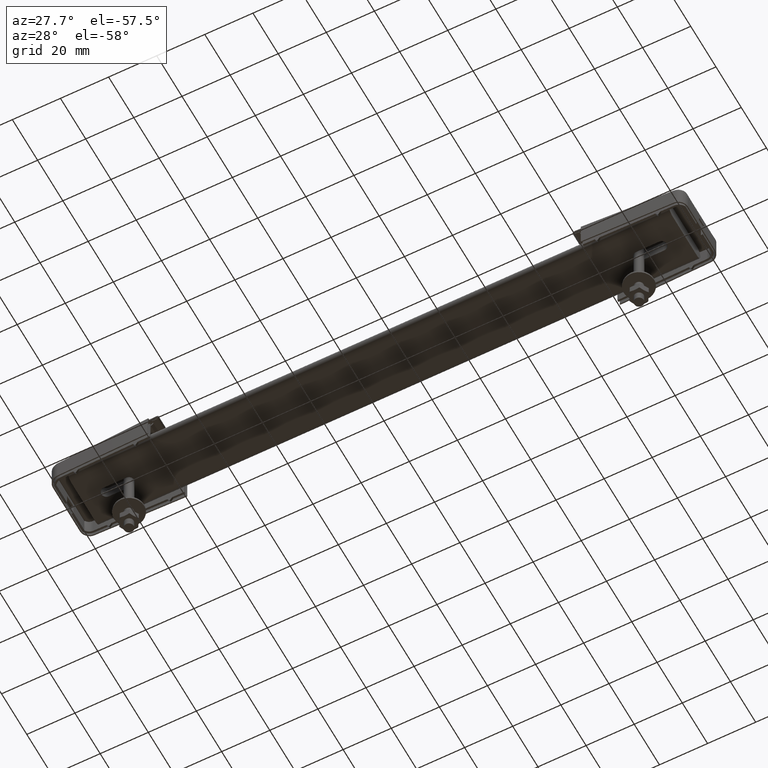
[diagram: clean part render]
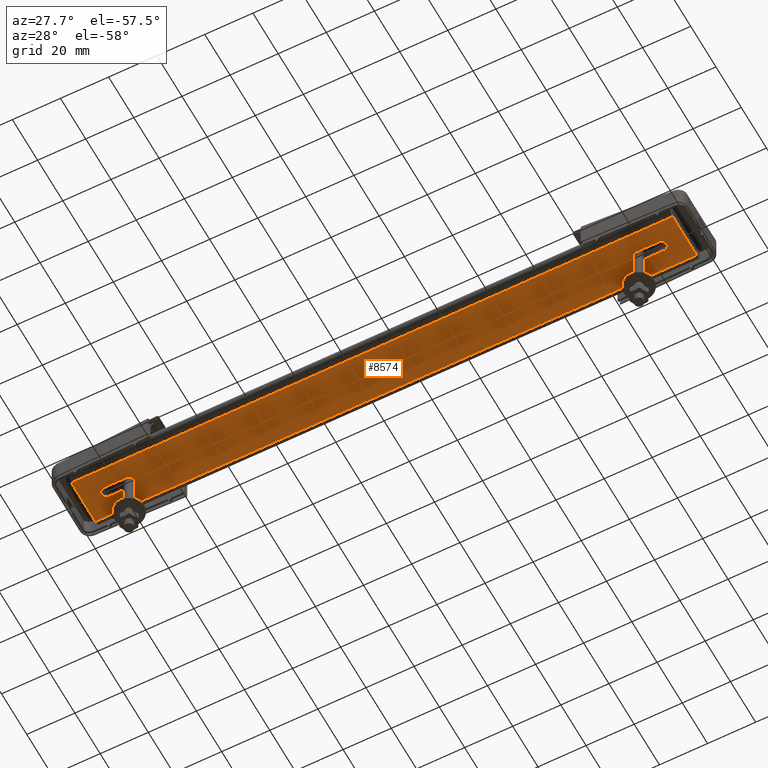
[diagram: same view with one face highlighted and labeled with its STEP entity id]
A machine part, auxiliary view. The second image highlights one B-rep face of the part: STEP entity #8574.
In plain terms, the highlighted face is a freeform B-spline surface patch.
Its self-contained STEP definition (entity closure, byte-faithful):
#7579=CARTESIAN_POINT('',(-115.400000000000010,2.100000000000045,0.0));
#7580=VERTEX_POINT('',#7579);
#7586=CARTESIAN_POINT('',(-106.0,2.099999999999900,0.0));
#7587=VERTEX_POINT('',#7586);
#7588=CARTESIAN_POINT('',(-115.400000000000010,2.100000000000045,0.0));
#7589=CARTESIAN_POINT('',(-106.0,2.099999999999900,0.0));
#7590=QUASI_UNIFORM_CURVE('',1,(#7588,#7589),.UNSPECIFIED.,.F.,.U.);
#7591=EDGE_CURVE('',#7580,#7587,#7590,.T.);
#7645=CARTESIAN_POINT('',(-103.900000000010910,-0.000006727861739,0.0));
#7646=VERTEX_POINT('',#7645);
#7647=CARTESIAN_POINT('',(-106.0,2.099999999999900,0.0));
#7648=CARTESIAN_POINT('',(-105.793858207144200,2.100022441297327,0.0));
#7649=CARTESIAN_POINT('',(-105.312683613142990,2.028830050815516,0.0));
#7650=CARTESIAN_POINT('',(-104.694954565642010,1.698592306469166,0.0));
#7651=CARTESIAN_POINT('',(-104.216778295933810,1.170813567834429,0.0));
#7652=CARTESIAN_POINT('',(-103.955965837774000,0.601321777797262,0.0));
#7653=CARTESIAN_POINT('',(-103.899954528681110,0.188974628914923,0.0));
#7654=CARTESIAN_POINT('',(-103.900000000010910,-0.000006727861739,0.0));
#7655=B_SPLINE_CURVE_WITH_KNOTS('',3,(#7647,#7648,#7649,#7650,#7651,#7652,#7653,#7654),.UNSPECIFIED.,.F.,.U.,(4,1,1,1,1,4),(0.000000660187966,0.618500699534173,1.443256068757343,2.061679562613096,2.731802184463999,3.298758855307647),.UNSPECIFIED.);
#7656=EDGE_CURVE('',#7587,#7646,#7655,.T.);
#7658=CARTESIAN_POINT('',(-106.0,-2.099999999999845,0.0));
#7659=VERTEX_POINT('',#7658);
#7660=CARTESIAN_POINT('',(-103.900000000010910,-0.000006727861739,0.0));
#7661=CARTESIAN_POINT('',(-103.899975792591900,-0.171803472261163,0.0));
#7662=CARTESIAN_POINT('',(-103.950806914912600,-0.584159895463627,0.0));
#7663=CARTESIAN_POINT('',(-104.233172880867500,-1.221861500744236,0.0));
#7664=CARTESIAN_POINT('',(-104.765791322855090,-1.754396748441160,0.0));
#7665=CARTESIAN_POINT('',(-105.398682666940300,-2.044004752651482,0.0));
#7666=CARTESIAN_POINT('',(-105.811021553053390,-2.100046344688557,0.0));
#7667=CARTESIAN_POINT('',(-106.0,-2.099999999999845,0.0));
#7668=B_SPLINE_CURVE_WITH_KNOTS('',3,(#7660,#7661,#7662,#7663,#7664,#7665,#7666,#7667),.UNSPECIFIED.,.F.,.U.,(4,1,1,1,1,4),(0.000000669351694,0.515409226561865,1.237081952212646,2.061674805202644,2.731795907637514,3.298751271250123),.UNSPECIFIED.);
#7669=EDGE_CURVE('',#7646,#7659,#7668,.T.);
#7692=CARTESIAN_POINT('',(-115.400000000000010,-2.099999999999960,0.0));
#7693=VERTEX_POINT('',#7692);
#7694=CARTESIAN_POINT('',(-106.0,-2.099999999999845,0.0));
#7695=CARTESIAN_POINT('',(-115.400000000000010,-2.099999999999960,0.0));
#7696=QUASI_UNIFORM_CURVE('',1,(#7694,#7695),.UNSPECIFIED.,.F.,.U.);
#7697=EDGE_CURVE('',#7659,#7693,#7696,.T.);
#7749=CARTESIAN_POINT('',(-117.499999999989300,0.000006727861809,0.0));
#7750=VERTEX_POINT('',#7749);
#7751=CARTESIAN_POINT('',(-115.400000000000010,-2.099999999999960,0.0));
#7752=CARTESIAN_POINT('',(-115.726519804344600,-2.100552176192001,0.0));
#7753=CARTESIAN_POINT('',(-116.292946744644890,-1.965087574677963,0.0));
#7754=CARTESIAN_POINT('',(-116.923053928036100,-1.497566655752322,0.0));
#7755=CARTESIAN_POINT('',(-117.373200554705900,-0.858590202306773,0.0));
#7756=CARTESIAN_POINT('',(-117.500570902402000,-0.326545134749809,0.0));
#7757=CARTESIAN_POINT('',(-117.499999999989300,0.000006727861809,0.0));
#7758=B_SPLINE_CURVE_WITH_KNOTS('',3,(#7751,#7752,#7753,#7754,#7755,#7756,#7757),.UNSPECIFIED.,.F.,.U.,(4,1,1,1,4),(0.000000660187373,0.979322859041585,1.700823189839377,2.319432908616478,3.298758855307866),.UNSPECIFIED.);
#7759=EDGE_CURVE('',#7693,#7750,#7758,.T.);
#7761=CARTESIAN_POINT('',(-117.499999999989300,0.000006727861809,0.0));
#7762=CARTESIAN_POINT('',(-117.500053793766800,0.206159218955968,0.0));
#7763=CARTESIAN_POINT('',(-117.428757976611290,0.687283170919369,0.0));
#7764=CARTESIAN_POINT('',(-117.098665692646510,1.305108077508390,0.0));
#7765=CARTESIAN_POINT('',(-116.622244901680200,1.736476602792987,0.0));
#7766=CARTESIAN_POINT('',(-116.069897819294990,2.023075877350709,0.0));
#7767=CARTESIAN_POINT('',(-115.657751513780700,2.100238140567340,0.0));
#7768=CARTESIAN_POINT('',(-115.400000000000010,2.100000000000045,0.0));
#7769=B_SPLINE_CURVE_WITH_KNOTS('',3,(#7761,#7762,#7763,#7764,#7765,#7766,#7767,#7768),.UNSPECIFIED.,.F.,.U.,(4,1,1,1,1,4),(0.000000669340993,0.618499284565979,1.443252749195535,2.061674805201851,2.525607845601738,3.298751271250337),.UNSPECIFIED.);
#7770=EDGE_CURVE('',#7750,#7580,#7769,.T.);
#7992=CARTESIAN_POINT('',(115.400000000000010,-2.099999999999955,0.0));
#7993=VERTEX_POINT('',#7992);
#7999=CARTESIAN_POINT('',(106.0,-2.099999999999845,0.0));
#8000=VERTEX_POINT('',#7999);
#8001=CARTESIAN_POINT('',(106.0,-2.099999999999845,0.0));
#8002=CARTESIAN_POINT('',(115.400000000000010,-2.099999999999955,0.0));
#8003=QUASI_UNIFORM_CURVE('',1,(#8001,#8002),.UNSPECIFIED.,.F.,.U.);
#8004=EDGE_CURVE('',#8000,#7993,#8003,.T.);
#8065=CARTESIAN_POINT('',(115.400000000000010,2.100000000000045,0.0));
#8066=VERTEX_POINT('',#8065);
#8072=CARTESIAN_POINT('',(117.499999999989200,-0.000006727861723,0.0));
#8073=VERTEX_POINT('',#8072);
#8074=CARTESIAN_POINT('',(115.400000000000010,2.100000000000045,0.0));
#8075=CARTESIAN_POINT('',(115.726517341222300,2.100551474406713,0.0));
#8076=CARTESIAN_POINT('',(116.292949204708800,1.965088131143074,0.0));
#8077=CARTESIAN_POINT('',(116.923053088313000,1.497566444142590,0.0));
#8078=CARTESIAN_POINT('',(117.373200994099190,0.858590374594413,0.0));
#8079=CARTESIAN_POINT('',(117.500570904026700,0.326545142057553,0.0));
#8080=CARTESIAN_POINT('',(117.499999999989200,-0.000006727861723,0.0));
#8081=B_SPLINE_CURVE_WITH_KNOTS('',3,(#8074,#8075,#8076,#8077,#8078,#8079,#8080),.UNSPECIFIED.,.F.,.U.,(4,1,1,1,4),(0.000000660188271,0.979322859041541,1.700823189839852,2.319432908616818,3.298758855307853),.UNSPECIFIED.);
#8082=EDGE_CURVE('',#8066,#8073,#8081,.T.);
#8084=CARTESIAN_POINT('',(117.499999999989200,-0.000006727861723,0.0));
#8085=CARTESIAN_POINT('',(117.500553254153000,-0.326523981661409,0.0));
#8086=CARTESIAN_POINT('',(117.365090257347900,-0.892953122885193,0.0));
#8087=CARTESIAN_POINT('',(116.897572461505900,-1.523058385339593,0.0));
#8088=CARTESIAN_POINT('',(116.258594676252700,-1.973202447390918,0.0));
#8089=CARTESIAN_POINT('',(115.726551516342500,-2.100569400941093,0.0));
#8090=CARTESIAN_POINT('',(115.400000000000010,-2.099999999999955,0.0));
#8091=B_SPLINE_CURVE_WITH_KNOTS('',3,(#8084,#8085,#8086,#8087,#8088,#8089,#8090),.UNSPECIFIED.,.F.,.U.,(4,1,1,1,4),(0.000000669342596,0.979320611938595,1.700819270764320,2.319427581754849,3.298751271250325),.UNSPECIFIED.);
#8092=EDGE_CURVE('',#8073,#7993,#8091,.T.);
#8105=CARTESIAN_POINT('',(106.0,2.100000000000120,0.0));
#8106=VERTEX_POINT('',#8105);
#8112=CARTESIAN_POINT('',(115.400000000000010,2.100000000000045,0.0));
#8113=CARTESIAN_POINT('',(106.0,2.100000000000120,0.0));
#8114=QUASI_UNIFORM_CURVE('',1,(#8112,#8113),.UNSPECIFIED.,.F.,.U.);
#8115=EDGE_CURVE('',#8066,#8106,#8114,.T.);
#8169=CARTESIAN_POINT('',(103.900000000010910,0.000006727861797,0.0));
#8170=VERTEX_POINT('',#8169);
#8171=CARTESIAN_POINT('',(106.0,-2.099999999999845,0.0));
#8172=CARTESIAN_POINT('',(105.793858490131400,-2.100022848843071,0.0));
#8173=CARTESIAN_POINT('',(105.312679154387300,-2.028833781099876,0.0));
#8174=CARTESIAN_POINT('',(104.694967815423000,-1.698583503195229,0.0));
#8175=CARTESIAN_POINT('',(104.216753247841400,-1.170827831309179,0.0));
#8176=CARTESIAN_POINT('',(103.955988409859700,-0.601314088867989,0.0));
#8177=CARTESIAN_POINT('',(103.899948292753190,-0.188975696341761,0.0));
#8178=CARTESIAN_POINT('',(103.900000000010910,0.000006727861797,0.0));
#8179=B_SPLINE_CURVE_WITH_KNOTS('',3,(#8171,#8172,#8173,#8174,#8175,#8176,#8177,#8178),.UNSPECIFIED.,.F.,.U.,(4,1,1,1,1,4),(0.000000660189903,0.618500699534861,1.443256068757748,2.061679562613187,2.731802184464102,3.298758855307701),.UNSPECIFIED.);
#8180=EDGE_CURVE('',#8000,#8170,#8179,.T.);
#8182=CARTESIAN_POINT('',(103.900000000010910,0.000006727861797,0.0));
#8183=CARTESIAN_POINT('',(103.899973945364390,0.206150505442557,0.0));
#8184=CARTESIAN_POINT('',(103.971176426945700,0.687309390072388,0.0));
#8185=CARTESIAN_POINT('',(104.301381170896510,1.305083125172243,0.0));
#8186=CARTESIAN_POINT('',(104.777742339050500,1.736484157701695,0.0));
#8187=CARTESIAN_POINT('',(105.330100181206210,2.023075635745694,0.0));
#8188=CARTESIAN_POINT('',(105.742249687982910,2.100238387150640,0.0));
#8189=CARTESIAN_POINT('',(106.0,2.100000000000120,0.0));
#8190=B_SPLINE_CURVE_WITH_KNOTS('',3,(#8182,#8183,#8184,#8185,#8186,#8187,#8188,#8189),.UNSPECIFIED.,.F.,.U.,(4,1,1,1,1,4),(0.000000669354339,0.618499284575837,1.443252749201001,2.061674805204402,2.525607845602738,3.298751271250293),.UNSPECIFIED.);
#8191=EDGE_CURVE('',#8170,#8106,#8190,.T.);
#8202=CARTESIAN_POINT('',(125.0,9.500000000000000,0.0));
#8203=VERTEX_POINT('',#8202);
#8251=CARTESIAN_POINT('',(125.0,-9.500000000000000,0.0));
#8252=VERTEX_POINT('',#8251);
#8265=CARTESIAN_POINT('',(125.0,-9.500000000000000,0.0));
#8266=CARTESIAN_POINT('',(125.0,9.500000000000000,0.0));
#8267=QUASI_UNIFORM_CURVE('',1,(#8265,#8266),.UNSPECIFIED.,.F.,.U.);
#8268=EDGE_CURVE('',#8252,#8203,#8267,.T.);
#8323=CARTESIAN_POINT('',(-125.0,9.500000000000000,0.0));
#8324=VERTEX_POINT('',#8323);
#8336=CARTESIAN_POINT('',(-125.0,-9.500000000000000,0.0));
#8337=VERTEX_POINT('',#8336);
#8338=CARTESIAN_POINT('',(-125.0,-9.500000000000000,0.0));
#8339=CARTESIAN_POINT('',(-125.0,9.500000000000000,0.0));
#8340=QUASI_UNIFORM_CURVE('',1,(#8338,#8339),.UNSPECIFIED.,.F.,.U.);
#8341=EDGE_CURVE('',#8337,#8324,#8340,.T.);
#8436=CARTESIAN_POINT('',(-125.0,-9.500000000000000,0.0));
#8437=CARTESIAN_POINT('',(125.0,-9.500000000000000,0.0));
#8438=QUASI_UNIFORM_CURVE('',1,(#8436,#8437),.UNSPECIFIED.,.F.,.U.);
#8439=EDGE_CURVE('',#8337,#8252,#8438,.T.);
#8464=CARTESIAN_POINT('',(-125.0,9.500000000000000,0.0));
#8465=CARTESIAN_POINT('',(125.0,9.500000000000000,0.0));
#8466=QUASI_UNIFORM_CURVE('',1,(#8464,#8465),.UNSPECIFIED.,.F.,.U.);
#8467=EDGE_CURVE('',#8324,#8203,#8466,.T.);
#8547=CARTESIAN_POINT('',(137.487499515451500,-10.449049963174311,0.0));
#8548=CARTESIAN_POINT('',(-137.487506220974010,-10.449049963174311,0.0));
#8549=CARTESIAN_POINT('',(137.487499515451500,10.449050472794029,0.0));
#8550=CARTESIAN_POINT('',(-137.487506220974010,10.449050472794029,0.0));
#8551=B_SPLINE_SURFACE_WITH_KNOTS('',1,1,((#8547,#8549),(#8548,#8550)),.UNSPECIFIED.,.F.,.F.,.U.,(2,2),(2,2),(0.0,274.975005736425490),(0.0,20.898100435968342),.UNSPECIFIED.);
#8552=ORIENTED_EDGE('',*,*,#8268,.F.);
#8553=ORIENTED_EDGE('',*,*,#8439,.F.);
#8554=ORIENTED_EDGE('',*,*,#8341,.T.);
#8555=ORIENTED_EDGE('',*,*,#8467,.T.);
#8556=EDGE_LOOP('',(#8552,#8553,#8554,#8555));
#8557=FACE_OUTER_BOUND('',#8556,.T.);
#8558=ORIENTED_EDGE('',*,*,#7591,.F.);
#8559=ORIENTED_EDGE('',*,*,#7770,.F.);
#8560=ORIENTED_EDGE('',*,*,#7759,.F.);
#8561=ORIENTED_EDGE('',*,*,#7697,.F.);
#8562=ORIENTED_EDGE('',*,*,#7669,.F.);
#8563=ORIENTED_EDGE('',*,*,#7656,.F.);
#8564=EDGE_LOOP('',(#8558,#8559,#8560,#8561,#8562,#8563));
#8565=FACE_BOUND('',#8564,.T.);
#8566=ORIENTED_EDGE('',*,*,#8004,.T.);
#8567=ORIENTED_EDGE('',*,*,#8092,.F.);
#8568=ORIENTED_EDGE('',*,*,#8082,.F.);
#8569=ORIENTED_EDGE('',*,*,#8115,.T.);
#8570=ORIENTED_EDGE('',*,*,#8191,.F.);
#8571=ORIENTED_EDGE('',*,*,#8180,.F.);
#8572=EDGE_LOOP('',(#8566,#8567,#8568,#8569,#8570,#8571));
#8573=FACE_BOUND('',#8572,.T.);
#8574=ADVANCED_FACE('',(#8557,#8565,#8573),#8551,.T.);